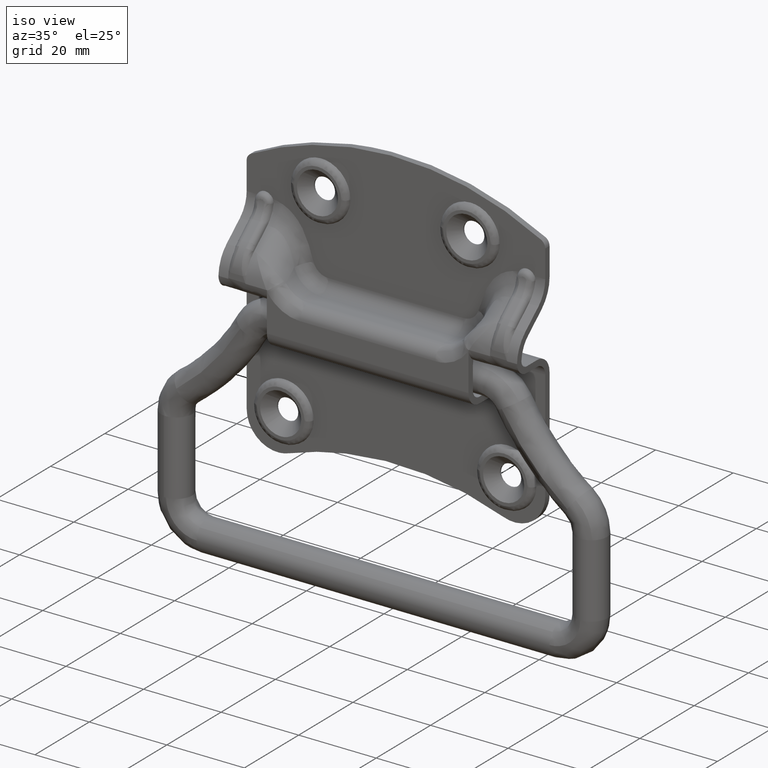
[diagram: clean part render]
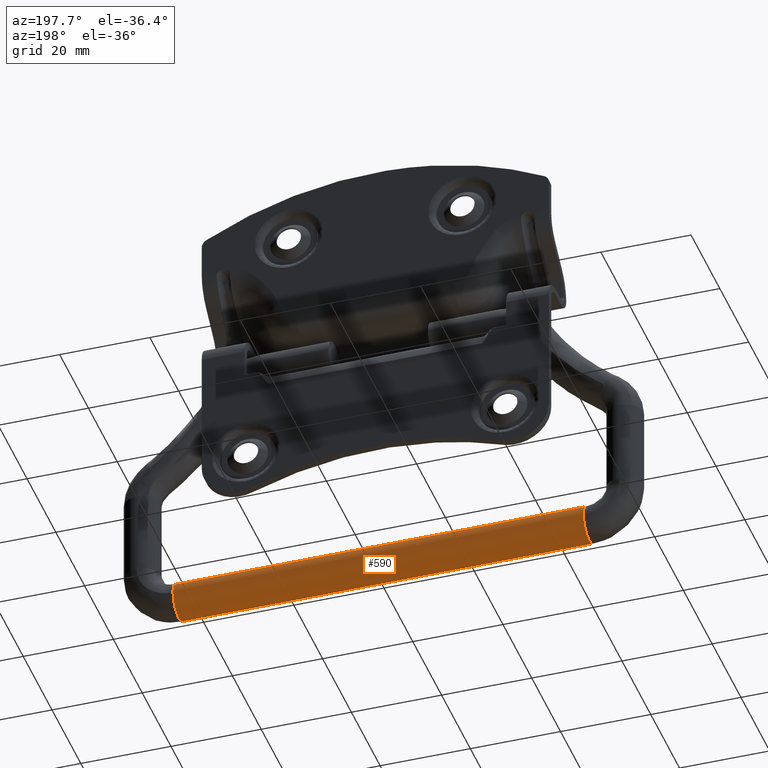
[diagram: tour spotlight — one face highlighted and labeled with its STEP entity id]
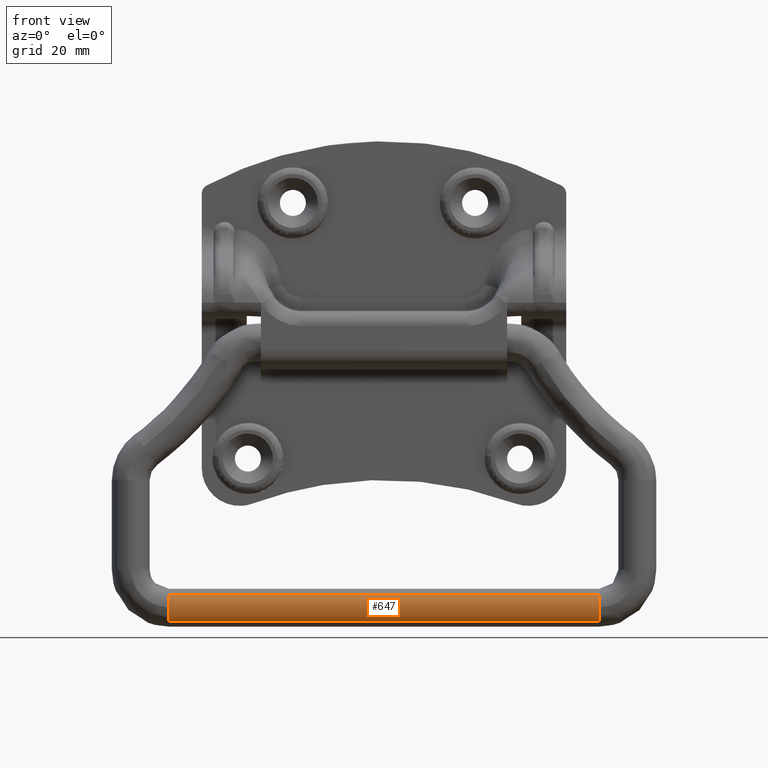
[diagram: tour spotlight — one face highlighted and labeled with its STEP entity id]
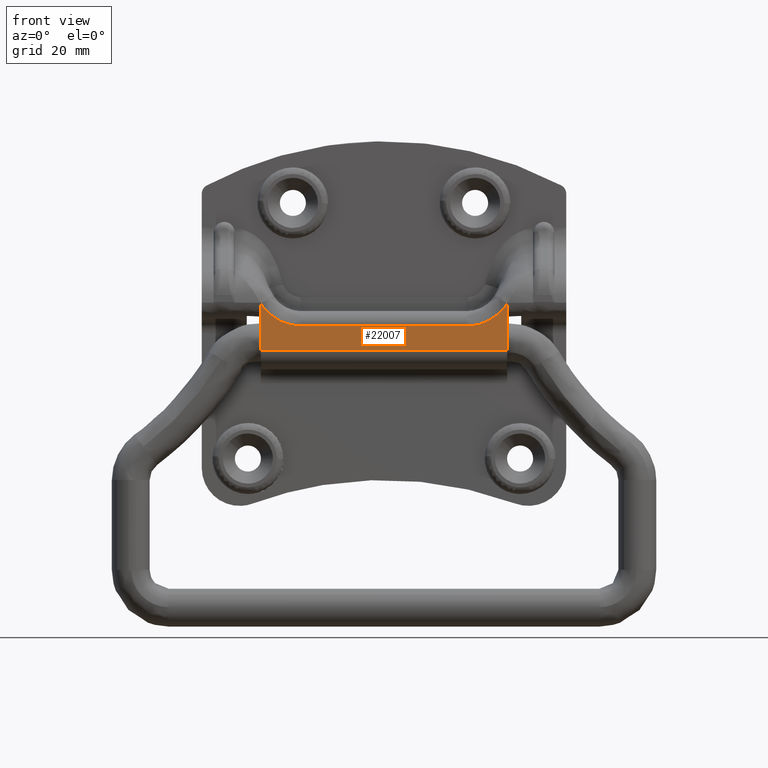
[diagram: tour spotlight — one face highlighted and labeled with its STEP entity id]
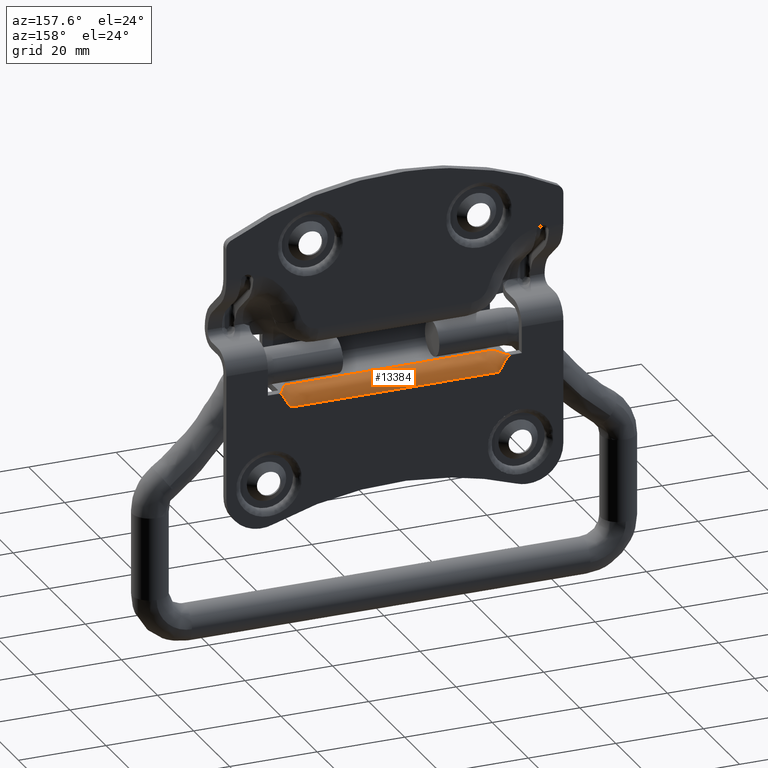
[diagram: tour spotlight — one face highlighted and labeled with its STEP entity id]
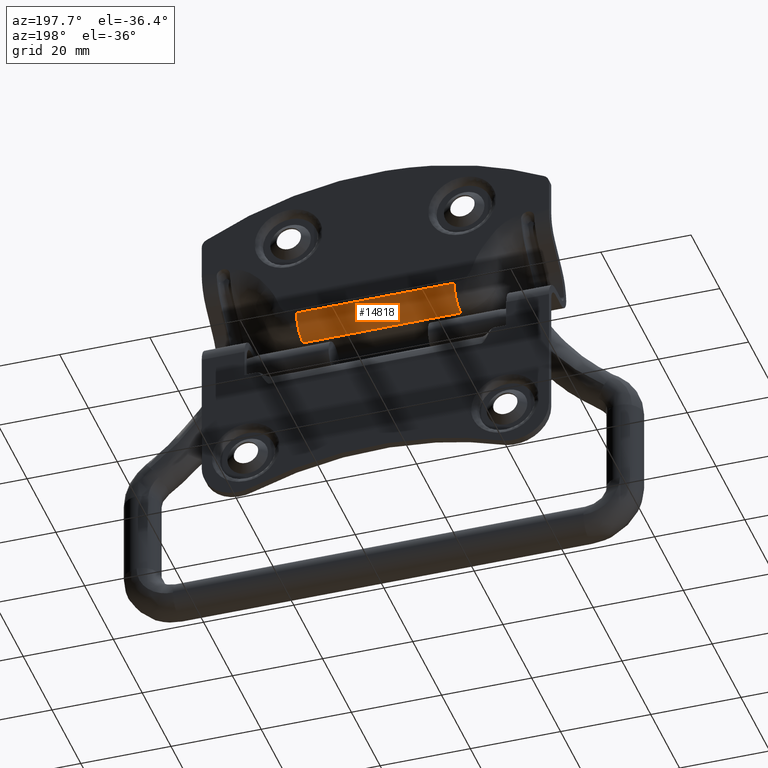
[diagram: tour spotlight — one face highlighted and labeled with its STEP entity id]
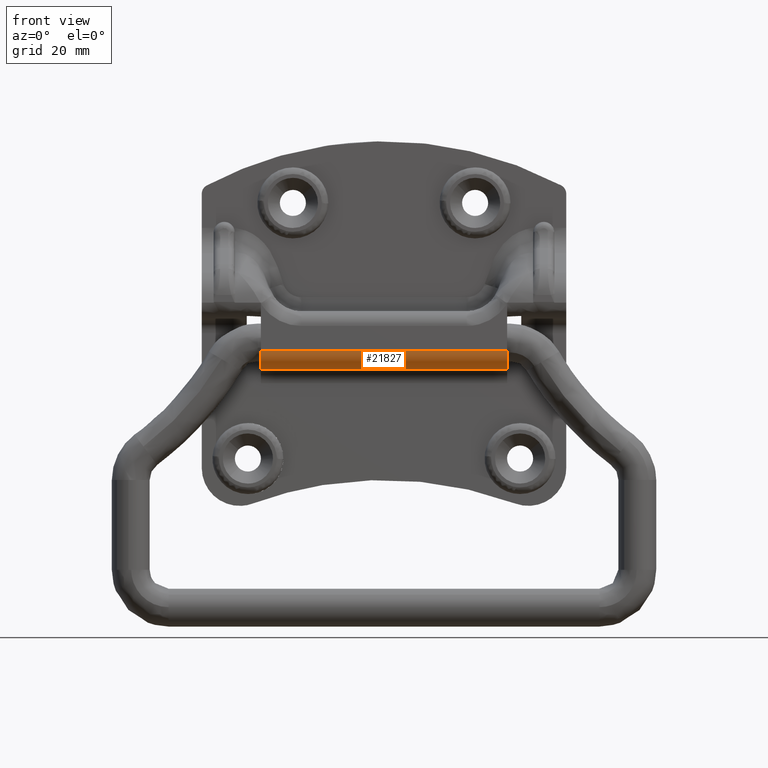
[diagram: tour spotlight — one face highlighted and labeled with its STEP entity id]
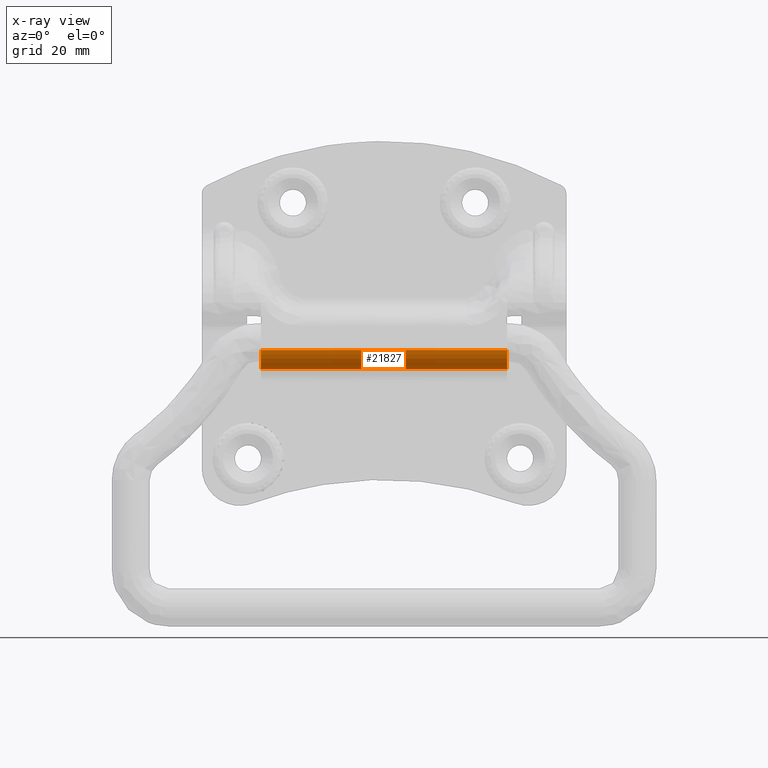
[diagram: x-ray of the same camera — body ghosted, this tour face saturated]
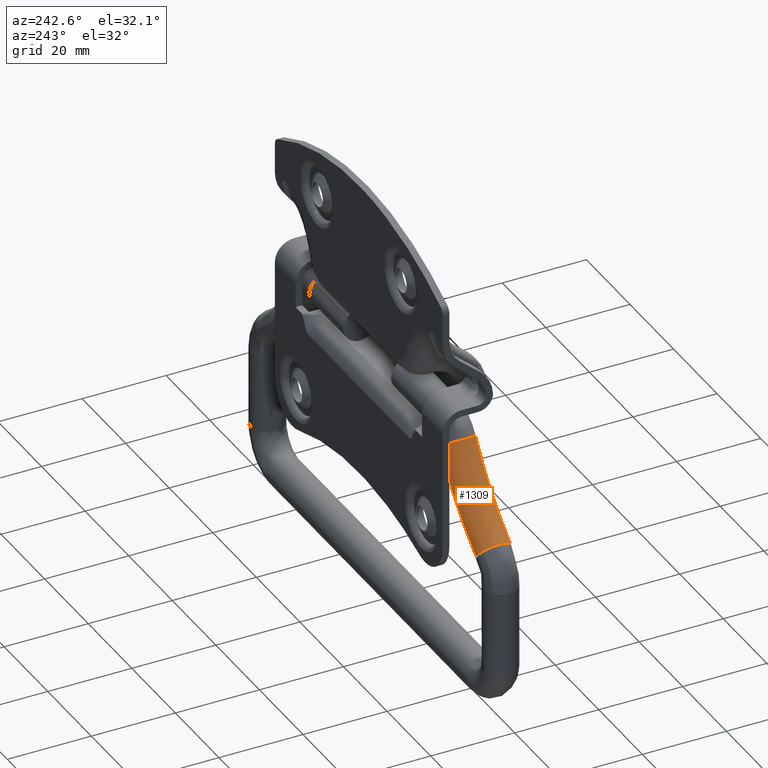
[diagram: tour spotlight — one face highlighted and labeled with its STEP entity id]
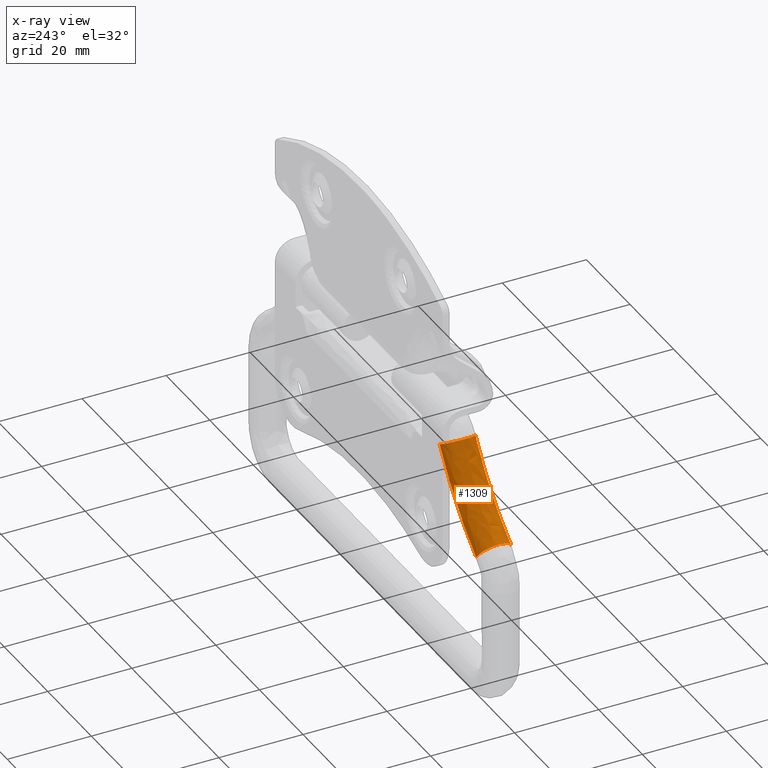
[diagram: x-ray of the same camera — body ghosted, this tour face saturated]
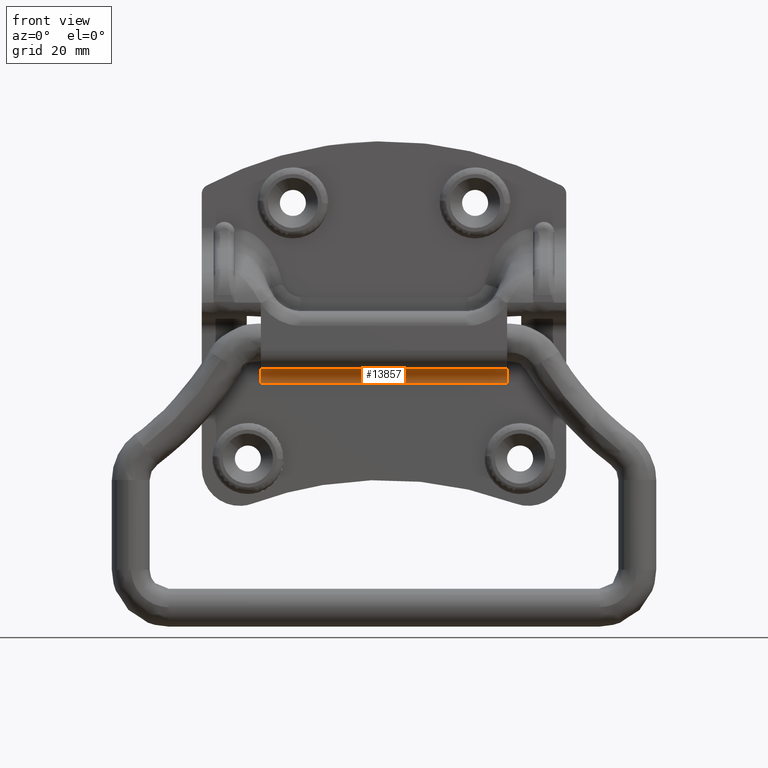
[diagram: tour spotlight — one face highlighted and labeled with its STEP entity id]
A machine part: a face-by-face anatomy tour. The part has 266 B-rep faces; the first image is the clean iso view, then the 8 largest visible faces are spotlighted one at a time (largest first), each with its STEP entity span.

Face 1 — auxiliary view, entity #590. In plain terms, the highlighted face is a freeform B-spline surface patch.
Definition (entity closure, byte-faithful):
#453=CARTESIAN_POINT('',(47.775210000207863,-2.901497484049149,-53.246611697224992));
#454=CARTESIAN_POINT('',(47.775210000207856,-0.148079181274134,-50.345114213175826));
#455=CARTESIAN_POINT('',(47.775210000207863,2.753418302775016,-53.098532515950851));
#456=CARTESIAN_POINT('',(47.775210000207856,5.654915786824166,-55.851950818725868));
#457=CARTESIAN_POINT('',(47.775210000207863,2.901497484049151,-58.753448302775020));
#458=CARTESIAN_POINT('',(47.775210000207856,0.148079181274135,-61.654945786824186));
#459=CARTESIAN_POINT('',(47.775210000207863,-2.753418302775014,-58.901527484049147));
#460=CARTESIAN_POINT('',(-47.832085251310382,-2.901497484049149,-53.246611697224992));
#461=CARTESIAN_POINT('',(-47.832085251310382,-0.148079181274134,-50.345114213175826));
#462=CARTESIAN_POINT('',(-47.832085251310382,2.753418302775016,-53.098532515950851));
#463=CARTESIAN_POINT('',(-47.832085251310382,5.654915786824166,-55.851950818725868));
#464=CARTESIAN_POINT('',(-47.832085251310382,2.901497484049151,-58.753448302775020));
#465=CARTESIAN_POINT('',(-47.832085251310382,0.148079181274135,-61.654945786824186));
#466=CARTESIAN_POINT('',(-47.832085251310382,-2.753418302775014,-58.901527484049147));
#474=(BOUNDED_SURFACE()B_SPLINE_SURFACE(2,1,((#453,#460),(#454,#461),(#455,#462),(#456,#463),(#457,#464),(#458,#465),(#459,#466)),.UNSPECIFIED.,.F.,.F.,.U.)B_SPLINE_SURFACE_WITH_KNOTS((3,2,2,3),(2,2),(0.0,6.627416997969532,13.254833995939061,19.882250993908599),(0.0,95.607295251518238),.UNSPECIFIED.)GEOMETRIC_REPRESENTATION_ITEM()RATIONAL_B_SPLINE_SURFACE(((1.0,1.0),(0.707106781186548,0.707106781186548),(1.0,1.0),(0.707106781186548,0.707106781186548),(1.0,1.0),(0.707106781186548,0.707106781186548),(1.0,1.0)))REPRESENTATION_ITEM('')SURFACE());
#475=CARTESIAN_POINT('',(-45.500199999994337,-2.901497353621698,-53.246611559789883));
#476=VERTEX_POINT('',#475);
#477=CARTESIAN_POINT('',(-45.500199999999197,0.0,-52.000030000000002));
#478=VERTEX_POINT('',#477);
#479=CARTESIAN_POINT('',(-45.500199999994337,-2.901497353621698,-53.246611559789883));
#480=CARTESIAN_POINT('',(-45.500199999995779,-2.552657467026106,-52.878231811651183));
#481=CARTESIAN_POINT('',(-45.500199999997378,-1.964386287139715,-52.458054138223289));
#482=CARTESIAN_POINT('',(-45.500199999998991,-0.946755736963771,-52.080859399608038));
#483=CARTESIAN_POINT('',(-45.500199999999190,-0.372001046086529,-51.999875654119784));
#484=CARTESIAN_POINT('',(-45.500199999999197,0.0,-52.000030000000002));
#485=B_SPLINE_CURVE_WITH_KNOTS('',3,(#479,#480,#481,#482,#483,#484),.UNSPECIFIED.,.F.,.U.,(4,1,1,4),(0.000000051280596,1.521756960872616,2.130437051319176,3.246399201293093),.UNSPECIFIED.);
#486=EDGE_CURVE('',#476,#478,#485,.T.);
#487=ORIENTED_EDGE('',*,*,#486,.F.);
#488=CARTESIAN_POINT('',(45.500200000055372,-2.901497355229981,-53.246611561486432));
#489=VERTEX_POINT('',#488);
#490=CARTESIAN_POINT('',(45.500200000055372,-2.901497355229981,-53.246611561486432));
#491=CARTESIAN_POINT('',(-45.500199999994337,-2.901497353621698,-53.246611559789883));
#492=QUASI_UNIFORM_CURVE('',1,(#490,#491),.UNSPECIFIED.,.F.,.U.);
#493=EDGE_CURVE('',#489,#476,#492,.T.);
#494=ORIENTED_EDGE('',*,*,#493,.F.);
#495=CARTESIAN_POINT('',(45.500200000000703,8.255010E-016,-52.000030000000002));
#496=VERTEX_POINT('',#495);
#497=CARTESIAN_POINT('',(45.500200000055372,-2.901497355229981,-53.246611561486432));
#498=CARTESIAN_POINT('',(45.500200000041403,-2.599056093993197,-52.927518966172087));
#499=CARTESIAN_POINT('',(45.500200000022332,-2.024367251312929,-52.494169015524562));
#500=CARTESIAN_POINT('',(45.500200000004682,-1.014400996400021,-52.090341937128223));
#501=CARTESIAN_POINT('',(45.500200000000667,-0.371991904013153,-51.999881516805928));
#502=CARTESIAN_POINT('',(45.500200000000703,8.255010E-016,-52.000030000000002));
#503=B_SPLINE_CURVE_WITH_KNOTS('',3,(#497,#498,#499,#500,#501,#502),.UNSPECIFIED.,.F.,.U.,(4,1,1,4),(0.000000051280754,1.318863952139025,2.130437052852726,3.246399203630138),.UNSPECIFIED.);
#504=EDGE_CURVE('',#489,#496,#503,.T.);
#505=ORIENTED_EDGE('',*,*,#504,.T.);
#506=CARTESIAN_POINT('',(45.500200000058172,3.998736757120124,-56.100550382293520));
#507=VERTEX_POINT('',#506);
#508=CARTESIAN_POINT('',(45.500200000000703,8.255010E-016,-52.000030000000002));
#509=CARTESIAN_POINT('',(45.500199999995807,0.432265729351608,-51.999781691791817));
#510=CARTESIAN_POINT('',(45.500199999991032,1.130300652824963,-52.114360338586032));
#511=CARTESIAN_POINT('',(45.500199999990919,2.135431646760589,-52.567921740088359));
#512=CARTESIAN_POINT('',(45.500199999997342,2.871395099245591,-53.154841158671132));
#513=CARTESIAN_POINT('',(45.500200000011887,3.537170425626259,-54.034005006860397));
#514=CARTESIAN_POINT('',(45.500200000031562,3.930628171731112,-55.001225666995417));
#515=CARTESIAN_POINT('',(45.500200000049752,4.007134957255723,-55.768192880162907));
#516=CARTESIAN_POINT('',(45.500200000058172,3.998736757120124,-56.100550382293520));
#517=B_SPLINE_CURVE_WITH_KNOTS('',3,(#508,#509,#510,#511,#512,#513,#514,#515,#516),.UNSPECIFIED.,.F.,.U.,(4,1,1,1,1,1,4),(0.000000116606028,1.296719771168355,2.094733138937757,3.291678943335561,4.089642441463694,5.386426887586781,6.383881631464872),.UNSPECIFIED.);
#518=EDGE_CURVE('',#496,#507,#517,.T.);
#519=ORIENTED_EDGE('',*,*,#518,.T.);
#520=CARTESIAN_POINT('',(45.500200000000703,8.255010E-016,-60.000030000000002));
#521=VERTEX_POINT('',#520);
#522=CARTESIAN_POINT('',(45.500200000058172,3.998736757120124,-56.100550382293520));
#523=CARTESIAN_POINT('',(45.500200000052047,3.988460168510945,-56.519070622730162));
#524=CARTESIAN_POINT('',(45.500200000042597,3.869983848042651,-57.160169337321882));
#525=CARTESIAN_POINT('',(45.500200000028990,3.458179606168735,-58.073459211652647));
#526=CARTESIAN_POINT('',(45.500200000018488,2.914298230311533,-58.802549026400769));
#527=CARTESIAN_POINT('',(45.500200000008839,2.129987097809118,-59.431838788753282));
#528=CARTESIAN_POINT('',(45.500200000002472,1.159134385462181,-59.882660591602047));
#529=CARTESIAN_POINT('',(45.500200000000802,0.418641070906803,-60.000258706407209));
#530=CARTESIAN_POINT('',(45.500200000000703,8.255010E-016,-60.000030000000002));
#531=B_SPLINE_CURVE_WITH_KNOTS('',3,(#522,#523,#524,#525,#526,#527,#528,#529,#530),.UNSPECIFIED.,.F.,.U.,(4,1,1,1,1,1,4),(0.000000150359211,1.255872438396544,1.932130804343061,2.994812782218800,3.960838537534740,4.926931215716708,6.182804565165723),.UNSPECIFIED.);
#532=EDGE_CURVE('',#507,#521,#531,.T.);
#533=ORIENTED_EDGE('',*,*,#532,.T.);
#534=CARTESIAN_POINT('',(45.500199999990507,-2.753418437719603,-58.901527355991497));
#535=VERTEX_POINT('',#534);
#536=CARTESIAN_POINT('',(45.500200000000703,8.255010E-016,-60.000030000000002));
#537=CARTESIAN_POINT('',(45.500199999982861,-0.537890119948858,-60.000700103418247));
#538=CARTESIAN_POINT('',(45.500199999964458,-1.549555689081211,-59.792475894663283));
#539=CARTESIAN_POINT('',(45.500199999977610,-2.409443891742051,-59.228477442816263));
#540=CARTESIAN_POINT('',(45.500199999990507,-2.753418437719603,-58.901527355991497));
#541=B_SPLINE_CURVE_WITH_KNOTS('',3,(#536,#537,#538,#539,#540),.UNSPECIFIED.,.F.,.U.,(4,1,4),(0.000000059124114,1.613363243608643,3.036944296391603),.UNSPECIFIED.);
#542=EDGE_CURVE('',#521,#535,#541,.T.);
#543=ORIENTED_EDGE('',*,*,#542,.T.);
#544=CARTESIAN_POINT('',(-45.500200000000113,-2.753418439405355,-58.901527354391789));
#545=VERTEX_POINT('',#544);
#546=CARTESIAN_POINT('',(45.500199999990507,-2.753418437719603,-58.901527355991497));
#547=CARTESIAN_POINT('',(-45.500200000000113,-2.753418439405355,-58.901527354391789));
#548=QUASI_UNIFORM_CURVE('',1,(#546,#547),.UNSPECIFIED.,.F.,.U.);
#549=EDGE_CURVE('',#535,#545,#548,.T.);
#550=ORIENTED_EDGE('',*,*,#549,.T.);
#551=CARTESIAN_POINT('',(-45.500199999999197,0.0,-60.000030000000002));
#552=VERTEX_POINT('',#551);
#553=CARTESIAN_POINT('',(-45.500199999999197,0.0,-60.000030000000002));
#554=CARTESIAN_POINT('',(-45.500200000000838,-0.537889830182075,-60.000712413121327));
#555=CARTESIAN_POINT('',(-45.500200000002337,-1.549554835718613,-59.792481294104853));
#556=CARTESIAN_POINT('',(-45.500200000001321,-2.409444232607455,-59.228473651086183));
#557=CARTESIAN_POINT('',(-45.500200000000113,-2.753418439405355,-58.901527354391789));
#558=B_SPLINE_CURVE_WITH_KNOTS('',3,(#553,#554,#555,#556,#557),.UNSPECIFIED.,.F.,.U.,(4,1,4),(0.000000059123462,1.613363244843306,3.036944298715720),.UNSPECIFIED.);
#559=EDGE_CURVE('',#552,#545,#558,.T.);
#560=ORIENTED_EDGE('',*,*,#559,.F.);
#561=CARTESIAN_POINT('',(-45.500200001273349,3.998736757022165,-56.100550386190321));
#562=VERTEX_POINT('',#561);
#563=CARTESIAN_POINT('',(-45.500200001273349,3.998736757022165,-56.100550386190321));
#564=CARTESIAN_POINT('',(-45.500200001136662,3.988459281550964,-56.519070787070092));
#565=CARTESIAN_POINT('',(-45.500200000906112,3.858162475692841,-57.224297259148393));
#566=CARTESIAN_POINT('',(-45.500200000629619,3.451407615413837,-58.071042099206529));
#567=CARTESIAN_POINT('',(-45.500200000392262,2.910383777449892,-58.796392892591157));
#568=CARTESIAN_POINT('',(-45.500200000194162,2.188867973175760,-59.404573515569567));
#569=CARTESIAN_POINT('',(-45.500200000036848,1.159143900491402,-59.882663611237817));
#570=CARTESIAN_POINT('',(-45.500199999999850,0.418632719086322,-60.000253901246410));
#571=CARTESIAN_POINT('',(-45.500199999999197,0.0,-60.000030000000002));
#572=B_SPLINE_CURVE_WITH_KNOTS('',3,(#563,#564,#565,#566,#567,#568,#569,#570,#571),.UNSPECIFIED.,.F.,.U.,(4,1,1,1,1,1,4),(0.000000150362339,1.255872437446884,2.125352024143014,2.801622199732796,3.960838534533254,4.926931211982964,6.182804560480287),.UNSPECIFIED.);
#573=EDGE_CURVE('',#562,#552,#572,.T.);
#574=ORIENTED_EDGE('',*,*,#573,.F.);
#575=CARTESIAN_POINT('',(-45.500199999999197,0.0,-52.000030000000002));
#576=CARTESIAN_POINT('',(-45.500199999891848,0.432255841743170,-51.999799501776089));
#577=CARTESIAN_POINT('',(-45.500199999761008,1.263331386058864,-52.136076675803722));
#578=CARTESIAN_POINT('',(-45.500199999795818,2.250660381439063,-52.642249512258537));
#579=CARTESIAN_POINT('',(-45.500199999964089,2.951991952007469,-53.261555106811102));
#580=CARTESIAN_POINT('',(-45.500200000177848,3.395776625671090,-53.847568629457783));
#581=CARTESIAN_POINT('',(-45.500200000468297,3.745581035790398,-54.530028089265727));
#582=CARTESIAN_POINT('',(-45.500200000822304,3.963080603154772,-55.268189998685934));
#583=CARTESIAN_POINT('',(-45.500200001124618,4.005452927894212,-55.834659837758927));
#584=CARTESIAN_POINT('',(-45.500200001273349,3.998736757022165,-56.100550386190321));
#585=B_SPLINE_CURVE_WITH_KNOTS('',3,(#575,#576,#577,#578,#579,#580,#581,#582,#583,#584),.UNSPECIFIED.,.F.,.U.,(4,1,1,1,1,1,1,4),(0.000000116606783,1.296719771960676,2.493740216605515,3.291678945345765,4.089642443961003,4.688162156534252,5.585931983743727,6.383881635363215),.UNSPECIFIED.);
#586=EDGE_CURVE('',#478,#562,#585,.T.);
#587=ORIENTED_EDGE('',*,*,#586,.F.);
#588=EDGE_LOOP('',(#487,#494,#505,#519,#533,#543,#550,#560,#574,#587));
#589=FACE_OUTER_BOUND('',#588,.T.);
#590=ADVANCED_FACE('',(#589),#474,.T.);

Face 2 — front view, entity #647. In plain terms, the highlighted face is a freeform B-spline surface patch.
Definition (entity closure, byte-faithful):
#475=CARTESIAN_POINT('',(-45.500199999994337,-2.901497353621698,-53.246611559789883));
#476=VERTEX_POINT('',#475);
#488=CARTESIAN_POINT('',(45.500200000055372,-2.901497355229981,-53.246611561486432));
#489=VERTEX_POINT('',#488);
#490=CARTESIAN_POINT('',(45.500200000055372,-2.901497355229981,-53.246611561486432));
#491=CARTESIAN_POINT('',(-45.500199999994337,-2.901497353621698,-53.246611559789883));
#492=QUASI_UNIFORM_CURVE('',1,(#490,#491),.UNSPECIFIED.,.F.,.U.);
#493=EDGE_CURVE('',#489,#476,#492,.T.);
#534=CARTESIAN_POINT('',(45.500199999990507,-2.753418437719603,-58.901527355991497));
#535=VERTEX_POINT('',#534);
#544=CARTESIAN_POINT('',(-45.500200000000113,-2.753418439405355,-58.901527354391789));
#545=VERTEX_POINT('',#544);
#546=CARTESIAN_POINT('',(45.500199999990507,-2.753418437719603,-58.901527355991497));
#547=CARTESIAN_POINT('',(-45.500200000000113,-2.753418439405355,-58.901527354391789));
#548=QUASI_UNIFORM_CURVE('',1,(#546,#547),.UNSPECIFIED.,.F.,.U.);
#549=EDGE_CURVE('',#535,#545,#548,.T.);
#591=CARTESIAN_POINT('',(47.775210000207863,-2.753418302775014,-58.901527484049147));
#592=CARTESIAN_POINT('',(47.775210000207856,-5.654915786824165,-56.148109181274130));
#593=CARTESIAN_POINT('',(47.775210000207863,-2.901497484049149,-53.246611697224992));
#594=CARTESIAN_POINT('',(-47.832085251310382,-2.753418302775014,-58.901527484049147));
#595=CARTESIAN_POINT('',(-47.832085251310382,-5.654915786824165,-56.148109181274130));
#596=CARTESIAN_POINT('',(-47.832085251310382,-2.901497484049149,-53.246611697224992));
#604=(BOUNDED_SURFACE()B_SPLINE_SURFACE(2,1,((#591,#594),(#592,#595),(#593,#596)),.UNSPECIFIED.,.F.,.F.,.U.)B_SPLINE_SURFACE_WITH_KNOTS((3,3),(2,2),(0.0,6.627416997969532),(0.0,95.607295251518238),.UNSPECIFIED.)GEOMETRIC_REPRESENTATION_ITEM()RATIONAL_B_SPLINE_SURFACE(((1.0,1.0),(0.707106781186548,0.707106781186548),(1.0,1.0)))REPRESENTATION_ITEM('')SURFACE());
#605=CARTESIAN_POINT('',(-45.500199999984012,-3.998736757132020,-55.899509618179742));
#606=VERTEX_POINT('',#605);
#607=CARTESIAN_POINT('',(-45.500199999984012,-3.998736757132020,-55.899509618179742));
#608=CARTESIAN_POINT('',(-45.500199999986130,-3.986185406539397,-55.379610343668730));
#609=CARTESIAN_POINT('',(-45.500199999989633,-3.767387146124701,-54.406499887034961));
#610=CARTESIAN_POINT('',(-45.500199999993157,-3.217576650415800,-53.579228410046980));
#611=CARTESIAN_POINT('',(-45.500199999994337,-2.901497353621698,-53.246611559789883));
#612=B_SPLINE_CURVE_WITH_KNOTS('',3,(#607,#608,#609,#610,#611),.UNSPECIFIED.,.F.,.U.,(4,1,4),(0.000000050042148,1.559953796602690,2.936406495244229),.UNSPECIFIED.);
#613=EDGE_CURVE('',#606,#476,#612,.T.);
#614=ORIENTED_EDGE('',*,*,#613,.F.);
#615=CARTESIAN_POINT('',(-45.500200000000113,-2.753418439405355,-58.901527354391789));
#616=CARTESIAN_POINT('',(-45.500199999998912,-3.133235478902902,-58.541911398417533));
#617=CARTESIAN_POINT('',(-45.500199999995793,-3.604262350100693,-57.874086508423439));
#618=CARTESIAN_POINT('',(-45.500199999989910,-3.951421064522891,-56.807381792853612));
#619=CARTESIAN_POINT('',(-45.500199999986052,-4.006690600124101,-56.213180724739111));
#620=CARTESIAN_POINT('',(-45.500199999984012,-3.998736757132020,-55.899509618179742));
#621=B_SPLINE_CURVE_WITH_KNOTS('',3,(#615,#616,#617,#618,#619,#620),.UNSPECIFIED.,.F.,.U.,(4,1,1,4),(0.000000033247771,1.568878182277715,2.405611991481065,3.346938499597786),.UNSPECIFIED.);
#622=EDGE_CURVE('',#545,#606,#621,.T.);
#623=ORIENTED_EDGE('',*,*,#622,.F.);
#624=ORIENTED_EDGE('',*,*,#549,.F.);
#625=CARTESIAN_POINT('',(45.500200000171731,-3.998736757131707,-55.899509618167329));
#626=VERTEX_POINT('',#625);
#627=CARTESIAN_POINT('',(45.500199999990507,-2.753418437719603,-58.901527355991497));
#628=CARTESIAN_POINT('',(45.500199999998962,-2.981074747982411,-58.685592848692963));
#629=CARTESIAN_POINT('',(45.500200000020243,-3.362622252325688,-58.226742054509486));
#630=CARTESIAN_POINT('',(45.500200000077449,-3.872480445470462,-57.227527515935513));
#631=CARTESIAN_POINT('',(45.500200000132487,-4.012468579686717,-56.422382968729721));
#632=CARTESIAN_POINT('',(45.500200000171731,-3.998736757131707,-55.899509618167329));
#633=B_SPLINE_CURVE_WITH_KNOTS('',3,(#627,#628,#629,#630,#631,#632),.UNSPECIFIED.,.F.,.U.,(4,1,1,4),(0.000000033247096,0.941326542021332,1.778060351808916,3.346938501934366),.UNSPECIFIED.);
#634=EDGE_CURVE('',#535,#626,#633,.T.);
#635=ORIENTED_EDGE('',*,*,#634,.T.);
#636=CARTESIAN_POINT('',(45.500200000171731,-3.998736757131707,-55.899509618167329));
#637=CARTESIAN_POINT('',(45.500200000151587,-3.987539785474928,-55.440795352219382));
#638=CARTESIAN_POINT('',(45.500200000108983,-3.792275032422308,-54.466882124779332));
#639=CARTESIAN_POINT('',(45.500200000071793,-3.259922850628318,-53.623444921458727));
#640=CARTESIAN_POINT('',(45.500200000055372,-2.901497355229981,-53.246611561486432));
#641=B_SPLINE_CURVE_WITH_KNOTS('',3,(#636,#637,#638,#639,#640),.UNSPECIFIED.,.F.,.U.,(4,1,4),(0.000000050042718,1.376452747581991,2.936406492893250),.UNSPECIFIED.);
#642=EDGE_CURVE('',#626,#489,#641,.T.);
#643=ORIENTED_EDGE('',*,*,#642,.T.);
#644=ORIENTED_EDGE('',*,*,#493,.T.);
#645=EDGE_LOOP('',(#614,#623,#624,#635,#643,#644));
#646=FACE_OUTER_BOUND('',#645,.T.);
#647=ADVANCED_FACE('',(#646),#604,.T.);

Face 3 — front view, entity #22007. In plain terms, the highlighted face is a freeform B-spline surface patch.
Definition (entity closure, byte-faithful):
#11143=CARTESIAN_POINT('',(25.784688332217350,-6.0,7.867236392747722));
#11144=VERTEX_POINT('',#11143);
#11157=CARTESIAN_POINT('',(26.000019999999999,-6.0,8.167119445763241));
#11158=VERTEX_POINT('',#11157);
#11159=CARTESIAN_POINT('',(26.000019999999999,-6.0,8.167119445763241));
#11160=CARTESIAN_POINT('',(25.926324104537802,-6.000000000000004,8.068557809308722));
#11161=CARTESIAN_POINT('',(25.854526690757371,-6.000000000000004,7.968568658005919));
#11162=CARTESIAN_POINT('',(25.784688332217350,-6.0,7.867236392747722));
#11163=B_SPLINE_CURVE_WITH_KNOTS('',3,(#11159,#11160,#11161,#11162),.UNSPECIFIED.,.F.,.U.,(4,4),(3.333955E-011,0.369209355338714),.UNSPECIFIED.);
#11164=EDGE_CURVE('',#11158,#11144,#11163,.T.);
#11355=CARTESIAN_POINT('',(17.469295052986400,-6.0,3.499970000000100));
#11356=VERTEX_POINT('',#11355);
#11368=CARTESIAN_POINT('',(25.784688332217350,-6.0,7.867236392747722));
#11369=CARTESIAN_POINT('',(25.380459129041220,-6.000000000000010,7.280731877523937));
#11370=CARTESIAN_POINT('',(24.413891966242389,-5.999999999999989,6.154960484676977));
#11371=CARTESIAN_POINT('',(22.486902636217820,-6.000000000000016,4.712997591416956));
#11372=CARTESIAN_POINT('',(20.114956771464360,-5.999999999999979,3.730005190802113));
#11373=CARTESIAN_POINT('',(18.334257930048430,-6.000000000000012,3.499758030627000));
#11374=CARTESIAN_POINT('',(17.469295052986400,-6.0,3.499970000000100));
#11375=B_SPLINE_CURVE_WITH_KNOTS('',3,(#11368,#11369,#11370,#11371,#11372,#11373,#11374),.UNSPECIFIED.,.F.,.U.,(4,1,1,1,4),(0.000000040982524,2.136948682738825,4.426573113479231,7.174055783142872,9.768930790637011),.UNSPECIFIED.);
#11376=EDGE_CURVE('',#11144,#11356,#11375,.T.);
#11408=CARTESIAN_POINT('',(-17.469295052986400,-6.0,3.499970000000100));
#11409=VERTEX_POINT('',#11408);
#11422=CARTESIAN_POINT('',(17.469295052986400,-6.0,3.499970000000100));
#11423=CARTESIAN_POINT('',(-17.469295052986400,-6.0,3.499970000000100));
#11424=QUASI_UNIFORM_CURVE('',1,(#11422,#11423),.UNSPECIFIED.,.F.,.U.);
#11425=EDGE_CURVE('',#11356,#11409,#11424,.T.);
#11455=CARTESIAN_POINT('',(-25.784688332217350,-6.0,7.867236392747722));
#11456=VERTEX_POINT('',#11455);
#11469=CARTESIAN_POINT('',(-17.469295052986400,-6.0,3.499970000000100));
#11470=CARTESIAN_POINT('',(-18.181608058378391,-6.000000000000001,3.499872888873191));
#11471=CARTESIAN_POINT('',(-19.657096511613911,-6.000000000000014,3.656634446620545));
#11472=CARTESIAN_POINT('',(-21.743779023714481,-5.999999999999987,4.359537161391813));
#11473=CARTESIAN_POINT('',(-23.932744515297411,-5.999999999999998,5.683657615907703));
#11474=CARTESIAN_POINT('',(-25.178651056119669,-6.000000000000015,6.987180129442290));
#11475=CARTESIAN_POINT('',(-25.784688332217350,-6.0,7.867236392747722));
#11476=B_SPLINE_CURVE_WITH_KNOTS('',3,(#11469,#11470,#11471,#11472,#11473,#11474,#11475),.UNSPECIFIED.,.F.,.U.,(4,1,1,1,4),(0.000000040980998,2.136948682738019,4.426573113478980,6.563499673341074,9.768930790636997),.UNSPECIFIED.);
#11477=EDGE_CURVE('',#11409,#11456,#11476,.T.);
#11541=CARTESIAN_POINT('',(-26.000019999999999,-6.0,8.167119445763250));
#11542=VERTEX_POINT('',#11541);
#11550=CARTESIAN_POINT('',(-25.784688332217350,-6.0,7.867236392747722));
#11551=CARTESIAN_POINT('',(-25.854533782745499,-5.999999999999997,7.968563717850691));
#11552=CARTESIAN_POINT('',(-25.926331049858550,-6.000000000000008,8.068552664741256));
#11553=CARTESIAN_POINT('',(-26.000019999999999,-6.0,8.167119445763250));
#11554=B_SPLINE_CURVE_WITH_KNOTS('',3,(#11550,#11551,#11552,#11553),.UNSPECIFIED.,.F.,.U.,(4,4),(3.282885E-011,0.369209178476165),.UNSPECIFIED.);
#11555=EDGE_CURVE('',#11456,#11542,#11554,.T.);
#21669=CARTESIAN_POINT('',(26.000019999999999,-6.0,-1.599999999999900));
#21670=VERTEX_POINT('',#21669);
#21671=CARTESIAN_POINT('',(26.000019999999999,-6.0,8.167119445763241));
#21672=CARTESIAN_POINT('',(26.000019999999999,-6.0,-1.599999999999900));
#21673=QUASI_UNIFORM_CURVE('',1,(#21671,#21672),.UNSPECIFIED.,.F.,.U.);
#21674=EDGE_CURVE('',#11158,#21670,#21673,.T.);
#21725=CARTESIAN_POINT('',(-26.000019999999999,-6.0,-1.599999999999900));
#21726=VERTEX_POINT('',#21725);
#21727=CARTESIAN_POINT('',(-26.000019999999999,-6.0,8.167119445763250));
#21728=CARTESIAN_POINT('',(-26.000019999999999,-6.0,-1.599999999999900));
#21729=QUASI_UNIFORM_CURVE('',1,(#21727,#21728),.UNSPECIFIED.,.F.,.U.);
#21730=EDGE_CURVE('',#11542,#21726,#21729,.T.);
#21817=CARTESIAN_POINT('',(26.000019999999999,-6.0,-1.599999999999900));
#21818=CARTESIAN_POINT('',(-26.000019999999999,-6.0,-1.599999999999900));
#21819=QUASI_UNIFORM_CURVE('',1,(#21817,#21818),.UNSPECIFIED.,.F.,.U.);
#21820=EDGE_CURVE('',#21670,#21726,#21819,.T.);
#21992=CARTESIAN_POINT('',(-28.597420735154820,-6.0,-2.087867654176915));
#21993=CARTESIAN_POINT('',(-28.597420735154820,-6.0,8.654986575991147));
#21994=CARTESIAN_POINT('',(28.597419340405072,-6.0,-2.087867654176915));
#21995=CARTESIAN_POINT('',(28.597419340405072,-6.0,8.654986575991147));
#21996=B_SPLINE_SURFACE_WITH_KNOTS('',1,1,((#21992,#21994),(#21993,#21995)),.UNSPECIFIED.,.F.,.F.,.U.,(2,2),(2,2),(0.0,10.742854230168060),(0.0,57.194840075559881),.UNSPECIFIED.);
#21997=ORIENTED_EDGE('',*,*,#21674,.F.);
#21998=ORIENTED_EDGE('',*,*,#11164,.T.);
#21999=ORIENTED_EDGE('',*,*,#11376,.T.);
#22000=ORIENTED_EDGE('',*,*,#11425,.T.);
#22001=ORIENTED_EDGE('',*,*,#11477,.T.);
#22002=ORIENTED_EDGE('',*,*,#11555,.T.);
#22003=ORIENTED_EDGE('',*,*,#21730,.T.);
#22004=ORIENTED_EDGE('',*,*,#21820,.F.);
#22005=EDGE_LOOP('',(#21997,#21998,#21999,#22000,#22001,#22002,#22003,#22004));
#22006=FACE_OUTER_BOUND('',#22005,.T.);
#22007=ADVANCED_FACE('',(#22006),#21996,.F.);

Face 4 — auxiliary view, entity #13384. In plain terms, the highlighted face is a freeform B-spline surface patch.
Definition (entity closure, byte-faithful):
#13264=CARTESIAN_POINT('',(28.999980000000001,5.900000000000000,-3.999999999999901));
#13265=CARTESIAN_POINT('',(28.999979999999990,6.000000000000003,-3.999999999999900));
#13266=CARTESIAN_POINT('',(28.999980000000001,6.0,-4.099999999999900));
#13267=CARTESIAN_POINT('',(28.079345714285729,5.900000000000000,-3.999999999999901));
#13268=CARTESIAN_POINT('',(28.079345714285736,6.000000000000003,-3.999999999999900));
#13269=CARTESIAN_POINT('',(28.079345714285729,6.0,-4.099999999999900));
#13270=CARTESIAN_POINT('',(27.158711428571468,5.900000000000000,-3.999999999999901));
#13271=CARTESIAN_POINT('',(27.158711428571472,6.000000000000003,-3.999999999999900));
#13272=CARTESIAN_POINT('',(27.158711428571468,6.0,-4.099999999999900));
#13273=CARTESIAN_POINT('',(26.238077142857200,5.900000000000000,-3.999999999999901));
#13274=CARTESIAN_POINT('',(26.238077142857211,6.000000000000003,-3.999999999999900));
#13275=CARTESIAN_POINT('',(26.238077142857200,6.0,-4.099999999999900));
#13276=CARTESIAN_POINT('',(25.317442857142900,5.900000000000000,-3.999999999999901));
#13277=CARTESIAN_POINT('',(25.317442857142932,6.000000000000003,-3.999999999999900));
#13278=CARTESIAN_POINT('',(25.317442857142900,6.0,-4.099999999999900));
#13279=CARTESIAN_POINT('',(24.396808571428650,2.400000000000000,-3.999999999999901));
#13280=CARTESIAN_POINT('',(24.396808571428650,6.000000000000003,-3.999999999999900));
#13281=CARTESIAN_POINT('',(24.396808571428650,6.0,-7.599999999999900));
#13282=CARTESIAN_POINT('',(23.476174285714350,2.400000000000000,-3.999999999999901));
#13283=CARTESIAN_POINT('',(23.476174285714304,5.999999999999996,-3.999999999999900));
#13284=CARTESIAN_POINT('',(23.476174285714350,6.0,-7.599999999999900));
#13285=CARTESIAN_POINT('',(7.825391428571450,2.400000000000000,-3.999999999999901));
#13286=CARTESIAN_POINT('',(7.825391428571448,5.999999999999996,-3.999999999999900));
#13287=CARTESIAN_POINT('',(7.825391428571450,6.0,-7.599999999999900));
#13288=CARTESIAN_POINT('',(-7.825391428571450,2.400000000000000,-3.999999999999901));
#13289=CARTESIAN_POINT('',(-7.825391428571448,5.999999999999996,-3.999999999999900));
#13290=CARTESIAN_POINT('',(-7.825391428571450,6.0,-7.599999999999900));
#13291=CARTESIAN_POINT('',(-23.476174285714350,2.400000000000000,-3.999999999999901));
#13292=CARTESIAN_POINT('',(-23.476174285714304,5.999999999999996,-3.999999999999900));
#13293=CARTESIAN_POINT('',(-23.476174285714350,6.0,-7.599999999999900));
#13294=CARTESIAN_POINT('',(-24.396808571428650,2.400000000000000,-3.999999999999901));
#13295=CARTESIAN_POINT('',(-24.396808571428583,5.999999999999996,-3.999999999999900));
#13296=CARTESIAN_POINT('',(-24.396808571428650,6.0,-7.599999999999900));
#13297=CARTESIAN_POINT('',(-25.317442857142900,5.900000000000000,-3.999999999999901));
#13298=CARTESIAN_POINT('',(-25.317442857142932,5.999999999999996,-3.999999999999900));
#13299=CARTESIAN_POINT('',(-25.317442857142900,6.0,-4.099999999999900));
#13300=CARTESIAN_POINT('',(-26.238077142857200,5.900000000000000,-3.999999999999901));
#13301=CARTESIAN_POINT('',(-26.238077142857211,5.999999999999996,-3.999999999999900));
#13302=CARTESIAN_POINT('',(-26.238077142857200,6.0,-4.099999999999900));
#13303=CARTESIAN_POINT('',(-27.158711428571479,5.900000000000000,-3.999999999999901));
#13304=CARTESIAN_POINT('',(-27.158711428571486,5.999999999999996,-3.999999999999900));
#13305=CARTESIAN_POINT('',(-27.158711428571479,6.0,-4.099999999999900));
#13306=CARTESIAN_POINT('',(-28.079345714285751,5.900000000000000,-3.999999999999901));
#13307=CARTESIAN_POINT('',(-28.079345714285754,5.999999999999996,-3.999999999999900));
#13308=CARTESIAN_POINT('',(-28.079345714285751,6.0,-4.099999999999900));
#13309=CARTESIAN_POINT('',(-28.999980000000029,5.900000000000000,-3.999999999999901));
#13310=CARTESIAN_POINT('',(-28.999980000000029,5.999999999999996,-3.999999999999900));
#13311=CARTESIAN_POINT('',(-28.999980000000029,6.0,-4.099999999999900));
#13319=(BOUNDED_SURFACE()B_SPLINE_SURFACE(2,3,((#13264,#13267,#13270,#13273,#13276,#13279,#13282,#13285,#13288,#13291,#13294,#13297,#13300,#13303,#13306,#13309),(#13265,#13268,#13271,#13274,#13277,#13280,#13283,#13286,#13289,#13292,#13295,#13298,#13301,#13304,#13307,#13310),(#13266,#13269,#13272,#13275,#13278,#13281,#13284,#13287,#13290,#13293,#13296,#13299,#13302,#13305,#13308,#13311)),.UNSPECIFIED.,.F.,.F.,.U.)B_SPLINE_SURFACE_WITH_KNOTS((3,3),(4,3,3,3,3,4),(0.0,5.964675298172568),(0.0,5.422719351955736,10.845438703911570,103.031667687161100,108.454387039116600,113.877106391072400),.UNSPECIFIED.)GEOMETRIC_REPRESENTATION_ITEM()RATIONAL_B_SPLINE_SURFACE(((1.0,1.0,1.0,1.0,1.0,1.0,1.0,1.0,1.0,1.0,1.0,1.0,1.0,1.0,1.0,1.0),(0.707106781186548,0.707106781186548,0.707106781186548,0.707106781186548,0.707106781186548,0.707106781186548,0.707106781186548,0.707106781186548,0.707106781186548,0.707106781186548,0.707106781186548,0.707106781186548,0.707106781186548,0.707106781186548,0.707106781186548,0.707106781186548),(1.0,1.0,1.0,1.0,1.0,1.0,1.0,1.0,1.0,1.0,1.0,1.0,1.0,1.0,1.0,1.0)))REPRESENTATION_ITEM('')SURFACE());
#13320=CARTESIAN_POINT('',(28.999980000000001,6.0,-4.099999999999900));
#13321=VERTEX_POINT('',#13320);
#13322=CARTESIAN_POINT('',(28.999980000000001,5.900000000000000,-4.0));
#13323=VERTEX_POINT('',#13322);
#13324=CARTESIAN_POINT('',(28.999980000000001,6.0,-4.099999999999900));
#13325=CARTESIAN_POINT('',(28.999980000000050,6.000121683046158,-4.077068531058537));
#13326=CARTESIAN_POINT('',(28.999979999999930,5.981178538162941,-4.024880339896994));
#13327=CARTESIAN_POINT('',(28.999980000000050,5.929609017560271,-3.999626828457775));
#13328=CARTESIAN_POINT('',(28.999980000000001,5.900000000000000,-4.0));
#13329=B_SPLINE_CURVE_WITH_KNOTS('',3,(#13324,#13325,#13326,#13327,#13328),.UNSPECIFIED.,.F.,.U.,(4,1,4),(0.000000429670615,0.068756536055482,0.157142457223713),.UNSPECIFIED.);
#13330=EDGE_CURVE('',#13321,#13323,#13329,.T.);
#13331=ORIENTED_EDGE('',*,*,#13330,.F.);
#13332=CARTESIAN_POINT('',(-28.999980000000001,6.0,-4.099999999999900));
#13333=VERTEX_POINT('',#13332);
#13334=CARTESIAN_POINT('',(-28.999979999999979,6.0,-4.099999999999899));
#13335=CARTESIAN_POINT('',(-28.079345714285719,6.0,-4.099999999999899));
#13336=CARTESIAN_POINT('',(-27.158711428571461,6.0,-4.099999999999900));
#13337=CARTESIAN_POINT('',(-26.238077142857200,6.0,-4.099999999999900));
#13338=CARTESIAN_POINT('',(-25.317442857142900,6.0,-4.099999999999900));
#13339=CARTESIAN_POINT('',(-24.396808571428650,6.0,-7.599999999999900));
#13340=CARTESIAN_POINT('',(-23.476174285714350,6.0,-7.599999999999900));
#13341=CARTESIAN_POINT('',(-7.825391428571450,6.0,-7.599999999999900));
#13342=CARTESIAN_POINT('',(7.825391428571450,6.0,-7.599999999999900));
#13343=CARTESIAN_POINT('',(23.476174285714350,6.0,-7.599999999999900));
#13344=CARTESIAN_POINT('',(24.396808571428650,6.0,-7.599999999999900));
#13345=CARTESIAN_POINT('',(25.317442857142900,6.0,-4.099999999999900));
#13346=CARTESIAN_POINT('',(26.238077142857200,6.0,-4.099999999999900));
#13347=CARTESIAN_POINT('',(27.158711428571468,6.0,-4.099999999999900));
#13348=CARTESIAN_POINT('',(28.079345714285729,6.0,-4.099999999999900));
#13349=CARTESIAN_POINT('',(28.999979999999990,6.0,-4.099999999999900));
#13350=B_SPLINE_CURVE_WITH_KNOTS('',3,(#13334,#13335,#13336,#13337,#13338,#13339,#13340,#13341,#13342,#13343,#13344,#13345,#13346,#13347,#13348,#13349),.UNSPECIFIED.,.F.,.U.,(4,3,3,3,3,4),(0.400000000000000,0.409523809523809,0.419047619047618,0.580952380952380,0.590476190476190,0.599999999999999),.UNSPECIFIED.);
#13351=EDGE_CURVE('',#13333,#13321,#13350,.T.);
#13352=ORIENTED_EDGE('',*,*,#13351,.F.);
#13353=CARTESIAN_POINT('',(-28.999980000000001,5.900000000000000,-4.0));
#13354=VERTEX_POINT('',#13353);
#13355=CARTESIAN_POINT('',(-28.999980000000001,5.900000000000000,-4.0));
#13356=CARTESIAN_POINT('',(-28.999980000000019,5.929605704815043,-3.999633794994968));
#13357=CARTESIAN_POINT('',(-28.999980000000040,5.981182974614931,-4.024872922733527));
#13358=CARTESIAN_POINT('',(-28.999980000000011,6.000120651782920,-4.077070369788928));
#13359=CARTESIAN_POINT('',(-28.999980000000001,6.0,-4.099999999999900));
#13360=B_SPLINE_CURVE_WITH_KNOTS('',3,(#13355,#13356,#13357,#13358,#13359),.UNSPECIFIED.,.F.,.U.,(4,1,4),(0.000000429670642,0.088386350838840,0.157142457223689),.UNSPECIFIED.);
#13361=EDGE_CURVE('',#13354,#13333,#13360,.T.);
#13362=ORIENTED_EDGE('',*,*,#13361,.F.);
#13363=CARTESIAN_POINT('',(28.999980000000001,5.900000000000000,-4.0));
#13364=CARTESIAN_POINT('',(28.079345714285729,5.900000000000000,-3.999999999999901));
#13365=CARTESIAN_POINT('',(27.158711428571468,5.900000000000000,-3.999999999999901));
#13366=CARTESIAN_POINT('',(26.238077142857200,5.900000000000000,-3.999999999999901));
#13367=CARTESIAN_POINT('',(25.317442857142900,5.900000000000000,-3.999999999999901));
#13368=CARTESIAN_POINT('',(24.396808571428650,2.400000000000000,-3.999999999999901));
#13369=CARTESIAN_POINT('',(23.476174285714350,2.400000000000000,-3.999999999999901));
#13370=CARTESIAN_POINT('',(7.825391428571450,2.400000000000000,-3.999999999999901));
#13371=CARTESIAN_POINT('',(-7.825391428571450,2.400000000000000,-3.999999999999901));
#13372=CARTESIAN_POINT('',(-23.476174285714350,2.400000000000000,-3.999999999999901));
#13373=CARTESIAN_POINT('',(-24.396808571428650,2.400000000000000,-3.999999999999901));
#13374=CARTESIAN_POINT('',(-25.317442857142900,5.900000000000000,-3.999999999999901));
#13375=CARTESIAN_POINT('',(-26.238077142857200,5.900000000000000,-3.999999999999901));
#13376=CARTESIAN_POINT('',(-27.158711428571461,5.900000000000000,-3.999999999999901));
#13377=CARTESIAN_POINT('',(-28.079345714285719,5.900000000000000,-3.999999999999901));
#13378=CARTESIAN_POINT('',(-28.999979999999979,5.900000000000000,-3.999999999999901));
#13379=B_SPLINE_CURVE_WITH_KNOTS('',3,(#13363,#13364,#13365,#13366,#13367,#13368,#13369,#13370,#13371,#13372,#13373,#13374,#13375,#13376,#13377,#13378),.UNSPECIFIED.,.F.,.U.,(4,3,3,3,3,4),(0.400000000000000,0.409523809523810,0.419047619047619,0.580952380952381,0.590476190476190,0.599999999999999),.UNSPECIFIED.);
#13380=EDGE_CURVE('',#13323,#13354,#13379,.T.);
#13381=ORIENTED_EDGE('',*,*,#13380,.F.);
#13382=EDGE_LOOP('',(#13331,#13352,#13362,#13381));
#13383=FACE_OUTER_BOUND('',#13382,.T.);
#13384=ADVANCED_FACE('',(#13383),#13319,.T.);

Face 5 — auxiliary view, entity #14818. In plain terms, the highlighted face is a freeform B-spline surface patch.
Definition (entity closure, byte-faithful):
#14731=CARTESIAN_POINT('',(17.469295052986400,1.399999999999956,4.999970000000100));
#14732=VERTEX_POINT('',#14731);
#14733=CARTESIAN_POINT('',(17.469295052986400,6.0,9.599969999999999));
#14734=VERTEX_POINT('',#14733);
#14735=CARTESIAN_POINT('',(17.469295052986400,1.399999999999956,4.999970000000100));
#14736=CARTESIAN_POINT('',(17.469295052986411,1.776343414344209,4.999872587804259));
#14737=CARTESIAN_POINT('',(17.469295052986400,2.453694578280745,5.083587778090974));
#14738=CARTESIAN_POINT('',(17.469295052986411,3.450678860469524,5.440236324001814));
#14739=CARTESIAN_POINT('',(17.469295052986400,4.283561732162215,5.967686811592573));
#14740=CARTESIAN_POINT('',(17.469295052986400,5.059067965294791,6.743135716571931));
#14741=CARTESIAN_POINT('',(17.469295052986411,5.517279271606794,7.486722613731626));
#14742=CARTESIAN_POINT('',(17.469295052986361,5.896965890121658,8.471099160200755));
#14743=CARTESIAN_POINT('',(17.469295052986428,6.000289080848490,9.110684159598405));
#14744=CARTESIAN_POINT('',(17.469295052986400,6.0,9.599969999999999));
#14745=B_SPLINE_CURVE_WITH_KNOTS('',3,(#14735,#14736,#14737,#14738,#14739,#14740,#14741,#14742,#14743,#14744),.UNSPECIFIED.,.F.,.U.,(4,1,1,1,1,1,1,4),(0.000000089770408,1.129024293694187,2.032274277486351,3.161326930023069,4.064524630080094,5.306479311524679,5.758096694280161,7.225844423938927),.UNSPECIFIED.);
#14746=EDGE_CURVE('',#14732,#14734,#14745,.T.);
#14774=CARTESIAN_POINT('',(-18.342759805635719,5.999824846095187,9.640112063292515));
#14775=CARTESIAN_POINT('',(18.364596424451950,5.999824846095187,9.640112063292515));
#14776=CARTESIAN_POINT('',(-18.342759805635719,6.042871938725911,4.707403826745940));
#14777=CARTESIAN_POINT('',(18.364596424451950,6.042871938725911,4.707403826745940));
#14778=CARTESIAN_POINT('',(-18.342759805635719,1.119176718139657,5.008549927259411));
#14779=CARTESIAN_POINT('',(18.364596424451950,1.119176718139657,5.008549927259411));
#14787=(BOUNDED_SURFACE()B_SPLINE_SURFACE(1,2,((#14774,#14776,#14778),(#14775,#14777,#14779)),.UNSPECIFIED.,.F.,.F.,.U.)B_SPLINE_SURFACE_WITH_KNOTS((2,2),(3,3),(0.0,36.707356230087669),(0.0,8.000547699281173),.UNSPECIFIED.)GEOMETRIC_REPRESENTATION_ITEM()RATIONAL_B_SPLINE_SURFACE(((1.0,0.681998360062499,1.0),(1.0,0.681998360062499,1.0)))REPRESENTATION_ITEM('')SURFACE());
#14788=CARTESIAN_POINT('',(-17.469295052986400,1.399999999999956,4.999970000000100));
#14789=VERTEX_POINT('',#14788);
#14790=CARTESIAN_POINT('',(-17.469295052986400,6.0,9.599969999999999));
#14791=VERTEX_POINT('',#14790);
#14792=CARTESIAN_POINT('',(-17.469295052986400,1.399999999999956,4.999970000000100));
#14793=CARTESIAN_POINT('',(-17.469295052986411,1.851625985843121,4.999758934622345));
#14794=CARTESIAN_POINT('',(-17.469295052986389,2.604178656911659,5.111749221811274));
#14795=CARTESIAN_POINT('',(-17.469295052986421,3.512528984588786,5.488052874230811));
#14796=CARTESIAN_POINT('',(-17.469295052986389,4.213883068054793,5.932231921888970));
#14797=CARTESIAN_POINT('',(-17.469295052986428,4.970655120804152,6.617715707453617));
#14798=CARTESIAN_POINT('',(-17.469295052986400,5.594142309432286,7.576148309374848));
#14799=CARTESIAN_POINT('',(-17.469295052986411,5.936964523641805,8.659152889546709));
#14800=CARTESIAN_POINT('',(-17.469295052986389,6.000033859118742,9.298902501298299));
#14801=CARTESIAN_POINT('',(-17.469295052986400,6.0,9.599969999999999));
#14802=B_SPLINE_CURVE_WITH_KNOTS('',3,(#14792,#14793,#14794,#14795,#14796,#14797,#14798,#14799,#14800,#14801),.UNSPECIFIED.,.F.,.U.,(4,1,1,1,1,1,1,4),(0.000000089771092,1.354836821195809,2.258086942871244,2.935520339984037,3.838720354883915,5.306479311524807,6.322623810137887,7.225844423938855),.UNSPECIFIED.);
#14803=EDGE_CURVE('',#14789,#14791,#14802,.T.);
#14804=ORIENTED_EDGE('',*,*,#14803,.T.);
#14805=CARTESIAN_POINT('',(17.469295052986400,6.0,9.599969999999999));
#14806=CARTESIAN_POINT('',(-17.469295052986400,6.0,9.599969999999999));
#14807=QUASI_UNIFORM_CURVE('',1,(#14805,#14806),.UNSPECIFIED.,.F.,.U.);
#14808=EDGE_CURVE('',#14734,#14791,#14807,.T.);
#14809=ORIENTED_EDGE('',*,*,#14808,.F.);
#14810=ORIENTED_EDGE('',*,*,#14746,.F.);
#14811=CARTESIAN_POINT('',(-17.469295052986400,1.399999999999956,4.999970000000100));
#14812=CARTESIAN_POINT('',(17.469295052986400,1.399999999999956,4.999970000000100));
#14813=QUASI_UNIFORM_CURVE('',1,(#14811,#14812),.UNSPECIFIED.,.F.,.U.);
#14814=EDGE_CURVE('',#14789,#14732,#14813,.T.);
#14815=ORIENTED_EDGE('',*,*,#14814,.F.);
#14816=EDGE_LOOP('',(#14804,#14809,#14810,#14815));
#14817=FACE_OUTER_BOUND('',#14816,.T.);
#14818=ADVANCED_FACE('',(#14817),#14787,.T.);

Face 6 — front view, entity #21827. An x-ray twin of the same camera follows (body ghosted, this face saturated) — the face is partly hidden behind the body. In plain terms, the highlighted face is a freeform B-spline surface patch.
Definition (entity closure, byte-faithful):
#21621=CARTESIAN_POINT('',(-26.000019999999999,-2.0,-5.599999999999900));
#21622=VERTEX_POINT('',#21621);
#21629=CARTESIAN_POINT('',(26.000019999999999,-2.0,-5.599999999999900));
#21630=VERTEX_POINT('',#21629);
#21636=CARTESIAN_POINT('',(26.000019999999999,-2.0,-5.599999999999900));
#21637=CARTESIAN_POINT('',(-26.000019999999999,-2.0,-5.599999999999900));
#21638=QUASI_UNIFORM_CURVE('',1,(#21636,#21637),.UNSPECIFIED.,.F.,.U.);
#21639=EDGE_CURVE('',#21630,#21622,#21638,.T.);
#21669=CARTESIAN_POINT('',(26.000019999999999,-6.0,-1.599999999999900));
#21670=VERTEX_POINT('',#21669);
#21676=CARTESIAN_POINT('',(26.000019999999999,-6.0,-1.599999999999900));
#21677=CARTESIAN_POINT('',(26.000020000000021,-6.000323442391443,-2.058193394008705));
#21678=CARTESIAN_POINT('',(26.000019999999989,-5.852202589185280,-2.908832590450544));
#21679=CARTESIAN_POINT('',(26.000020000000010,-5.321984976837493,-3.900776649668964));
#21680=CARTESIAN_POINT('',(26.000020000000049,-4.747702248555236,-4.534155050611004));
#21681=CARTESIAN_POINT('',(26.000019999999932,-4.152747586964444,-4.998486552688552));
#21682=CARTESIAN_POINT('',(26.000020000000021,-3.276023651550807,-5.453530841330093));
#21683=CARTESIAN_POINT('',(26.000019999999999,-2.490942473811529,-5.600437569333606));
#21684=CARTESIAN_POINT('',(26.000019999999999,-2.0,-5.599999999999900));
#21685=B_SPLINE_CURVE_WITH_KNOTS('',3,(#21676,#21677,#21678,#21679,#21680,#21681,#21682,#21683,#21684),.UNSPECIFIED.,.F.,.U.,(4,1,1,1,1,1,4),(0.000000108831338,1.374478340886670,2.552635862203233,3.338007588733287,3.927055540615936,4.810685416077259,6.283342977340448),.UNSPECIFIED.);
#21686=EDGE_CURVE('',#21670,#21630,#21685,.T.);
#21725=CARTESIAN_POINT('',(-26.000019999999999,-6.0,-1.599999999999900));
#21726=VERTEX_POINT('',#21725);
#21763=CARTESIAN_POINT('',(-26.000019999999999,-6.0,-1.599999999999900));
#21764=CARTESIAN_POINT('',(-26.000020000000021,-6.000323442391443,-2.058193394008705));
#21765=CARTESIAN_POINT('',(-26.000019999999989,-5.852202589185280,-2.908832590450544));
#21766=CARTESIAN_POINT('',(-26.000020000000010,-5.321984976837493,-3.900776649668964));
#21767=CARTESIAN_POINT('',(-26.000020000000049,-4.747702248555236,-4.534155050611004));
#21768=CARTESIAN_POINT('',(-26.000019999999932,-4.152747586964444,-4.998486552688552));
#21769=CARTESIAN_POINT('',(-26.000020000000021,-3.276023651550807,-5.453530841330093));
#21770=CARTESIAN_POINT('',(-26.000019999999999,-2.490942473811529,-5.600437569333606));
#21771=CARTESIAN_POINT('',(-26.000019999999999,-2.0,-5.599999999999900));
#21772=B_SPLINE_CURVE_WITH_KNOTS('',3,(#21763,#21764,#21765,#21766,#21767,#21768,#21769,#21770,#21771),.UNSPECIFIED.,.F.,.U.,(4,1,1,1,1,1,4),(0.000000108831338,1.374478340886670,2.552635862203233,3.338007588733287,3.927055540615936,4.810685416077259,6.283342977340448),.UNSPECIFIED.);
#21773=EDGE_CURVE('',#21726,#21622,#21772,.T.);
#21803=CARTESIAN_POINT('',(27.300021000000012,-5.998629299902228,-1.495292206768402));
#21804=CARTESIAN_POINT('',(-27.332521024999998,-5.998629299902228,-1.495292206768402));
#21805=CARTESIAN_POINT('',(27.300021000000005,-6.112897804783965,-5.859030354376372));
#21806=CARTESIAN_POINT('',(-27.332521024999998,-6.112897804783965,-5.859030354376372));
#21807=CARTESIAN_POINT('',(27.300021000000012,-1.755805841860578,-5.592539193687368));
#21808=CARTESIAN_POINT('',(-27.332521024999998,-1.755805841860578,-5.592539193687368));
#21816=(BOUNDED_SURFACE()B_SPLINE_SURFACE(1,2,((#21803,#21805,#21807),(#21804,#21806,#21808)),.UNSPECIFIED.,.F.,.F.,.U.)B_SPLINE_SURFACE_WITH_KNOTS((2,2),(3,3),(0.0,54.632542025000014),(0.0,7.040168494269333),.UNSPECIFIED.)GEOMETRIC_REPRESENTATION_ITEM()RATIONAL_B_SPLINE_SURFACE(((1.0,0.675590207615660,1.0),(1.0,0.675590207615660,1.0)))REPRESENTATION_ITEM('')SURFACE());
#21817=CARTESIAN_POINT('',(26.000019999999999,-6.0,-1.599999999999900));
#21818=CARTESIAN_POINT('',(-26.000019999999999,-6.0,-1.599999999999900));
#21819=QUASI_UNIFORM_CURVE('',1,(#21817,#21818),.UNSPECIFIED.,.F.,.U.);
#21820=EDGE_CURVE('',#21670,#21726,#21819,.T.);
#21821=ORIENTED_EDGE('',*,*,#21820,.T.);
#21822=ORIENTED_EDGE('',*,*,#21773,.T.);
#21823=ORIENTED_EDGE('',*,*,#21639,.F.);
#21824=ORIENTED_EDGE('',*,*,#21686,.F.);
#21825=EDGE_LOOP('',(#21821,#21822,#21823,#21824));
#21826=FACE_OUTER_BOUND('',#21825,.T.);
#21827=ADVANCED_FACE('',(#21826),#21816,.T.);

Face 7 — auxiliary view, entity #1309. An x-ray twin of the same camera follows (body ghosted, this face saturated) — the face is partly hidden behind the body. In plain terms, the highlighted face is a freeform B-spline surface patch.
Definition (entity closure, byte-faithful):
#1091=CARTESIAN_POINT('',(-34.302151838647731,-3.906832948267044,-3.500867497437144));
#1092=VERTEX_POINT('',#1091);
#1132=CARTESIAN_POINT('',(-33.216997741059750,3.979804067870131,-4.140687472691729));
#1133=VERTEX_POINT('',#1132);
#1141=CARTESIAN_POINT('',(-37.008472132230096,2.110858E-015,-1.905188333333972));
#1142=VERTEX_POINT('',#1141);
#1143=CARTESIAN_POINT('',(-33.216997741059750,3.979804067870131,-4.140687472691729));
#1144=CARTESIAN_POINT('',(-33.425883658605663,4.004279968815763,-4.017525810308800));
#1145=CARTESIAN_POINT('',(-33.907793531745057,4.009414030855771,-3.733385922891266));
#1146=CARTESIAN_POINT('',(-34.558997407813223,3.856334838253515,-3.349428244609351));
#1147=CARTESIAN_POINT('',(-35.197527842103327,3.546692051689472,-2.972942980819903));
#1148=CARTESIAN_POINT('',(-35.803619294055778,3.087397311297097,-2.615584133198948));
#1149=CARTESIAN_POINT('',(-36.406309232737492,2.347386368763332,-2.260230858926777));
#1150=CARTESIAN_POINT('',(-36.884963083486753,1.288147806348283,-1.978010761676385));
#1151=CARTESIAN_POINT('',(-37.008733530555283,0.452692826319039,-1.905034209720687));
#1152=CARTESIAN_POINT('',(-37.008472132230096,2.110858E-015,-1.905188333333972));
#1153=B_SPLINE_CURVE_WITH_KNOTS('',3,(#1143,#1144,#1145,#1146,#1147,#1148,#1149,#1150,#1151,#1152),.UNSPECIFIED.,.F.,.U.,(4,1,1,1,1,1,1,4),(0.000000111994811,0.731207183980094,1.671377119447867,2.298165050882687,3.133849043280008,4.178425371785508,5.327509390757566,6.685499083285301),.UNSPECIFIED.);
#1154=EDGE_CURVE('',#1133,#1142,#1153,.T.);
#1156=CARTESIAN_POINT('',(-37.008472132230096,2.110858E-015,-1.905188333333972));
#1157=CARTESIAN_POINT('',(-37.008520225223663,-0.310413762382172,-1.905159977123510));
#1158=CARTESIAN_POINT('',(-36.951589769217378,-0.874778022904296,-1.938726862265602));
#1159=CARTESIAN_POINT('',(-36.691996741411423,-1.760396243060890,-2.091786049900650));
#1160=CARTESIAN_POINT('',(-36.222208637966403,-2.628922250729953,-2.368778795359667));
#1161=CARTESIAN_POINT('',(-35.412135087886611,-3.460602952749832,-2.846407954155076));
#1162=CARTESIAN_POINT('',(-34.705906279201884,-3.804273122404760,-3.262808997955535));
#1163=CARTESIAN_POINT('',(-34.302151838647731,-3.906832948267044,-3.500867497437144));
#1164=B_SPLINE_CURVE_WITH_KNOTS('',3,(#1156,#1157,#1158,#1159,#1160,#1161,#1162,#1163),.UNSPECIFIED.,.F.,.U.,(4,1,1,1,1,4),(0.000000168859590,0.931248905041167,1.693215961173781,2.793766558248655,3.979042718921881,5.418273187434466),.UNSPECIFIED.);
#1165=EDGE_CURVE('',#1142,#1092,#1164,.T.);
#1220=CARTESIAN_POINT('',(-51.777574810755475,-3.918968903944765,-22.725154410543833));
#1221=CARTESIAN_POINT('',(-40.474093111251271,-3.918968903944767,-14.590145328219858));
#1222=CARTESIAN_POINT('',(-33.636912823240024,-3.918968903944766,-2.457543092518292));
#1223=CARTESIAN_POINT('',(-51.793669490171702,-3.912915862487115,-22.702791077891145));
#1224=CARTESIAN_POINT('',(-40.495115918734733,-3.912915862487116,-14.571328722819139));
#1225=CARTESIAN_POINT('',(-33.660916526431031,-3.912915862487116,-2.444016097805332));
#1226=CARTESIAN_POINT('',(-53.842065579143167,-3.142535407705667,-19.856573271529392));
#1227=CARTESIAN_POINT('',(-43.170722901308856,-3.142535407705667,-12.176508676159507));
#1228=CARTESIAN_POINT('',(-36.715906965551461,-3.142535407705667,-0.722413427196614));
#1229=CARTESIAN_POINT('',(-53.633244496793381,0.401446859404855,-20.146727254017282));
#1230=CARTESIAN_POINT('',(-42.897961617955545,0.401446859404855,-12.420645499535070));
#1231=CARTESIAN_POINT('',(-36.404469927812478,0.401446859404855,-0.897919978389700));
#1232=CARTESIAN_POINT('',(-53.398743607577074,4.381250927330054,-20.472562970111742));
#1233=CARTESIAN_POINT('',(-42.591657471025606,4.381250927330053,-12.694805088824612));
#1234=CARTESIAN_POINT('',(-36.054733869255180,4.381250927330054,-1.095009476513878));
#1235=CARTESIAN_POINT('',(-51.058221341161918,3.977082186768058,-23.724686027133327));
#1236=CARTESIAN_POINT('',(-39.534476414780308,3.977082186768060,-15.431155579553517));
#1237=CARTESIAN_POINT('',(-32.564064664727923,3.977082186768059,-3.062133611428005));
#1238=CARTESIAN_POINT('',(-51.042547341707255,3.974375551283295,-23.746464830844648));
#1239=CARTESIAN_POINT('',(-39.514003097821963,3.974375551283295,-15.449480359759569));
#1240=CARTESIAN_POINT('',(-32.540688366201202,3.974375551283295,-3.075307039880413));
#1248=(BOUNDED_SURFACE()B_SPLINE_SURFACE(2,2,((#1220,#1223,#1226,#1229,#1232,#1235,#1238),(#1221,#1224,#1227,#1230,#1233,#1236,#1239),(#1222,#1225,#1228,#1231,#1234,#1237,#1240)),.UNSPECIFIED.,.F.,.F.,.U.)B_SPLINE_SURFACE_WITH_KNOTS((3,3),(3,1,2,1,3),(0.0,28.070804669680449),(0.0,0.063719857321550,6.160943211035638,12.788360209005170,12.852086962782490),.UNSPECIFIED.)GEOMETRIC_REPRESENTATION_ITEM()RATIONAL_B_SPLINE_SURFACE(((0.916016592581551,0.913763286238386,0.695895685762613,0.952579395481598,0.673575350163620,0.955262193637245,0.957944991792892),(0.894434119554928,0.892233903869472,0.679499530945170,0.930135458029813,0.657705089794936,0.932755046174529,0.935374634319245),(0.915771720960447,0.913519016976215,0.695709657358683,0.952324749809576,0.673395288482133,0.955006830793570,0.957688911777564)))REPRESENTATION_ITEM('')SURFACE());
#1249=ORIENTED_EDGE('',*,*,#1165,.F.);
#1250=ORIENTED_EDGE('',*,*,#1154,.F.);
#1251=CARTESIAN_POINT('',(-50.058614239848957,3.979804067364710,-22.956848700156691));
#1252=VERTEX_POINT('',#1251);
#1253=CARTESIAN_POINT('',(-50.058614239848957,3.979804067364710,-22.956848700156691));
#1254=CARTESIAN_POINT('',(-47.834352859759413,3.979804067485734,-21.289190894024170));
#1255=CARTESIAN_POINT('',(-44.307731550820982,3.979804067652656,-18.269140252179021));
#1256=CARTESIAN_POINT('',(-38.497801900992627,3.979804067847844,-12.091763759560280));
#1257=CARTESIAN_POINT('',(-35.166503141121559,3.979804067886611,-7.447953121565941));
#1258=CARTESIAN_POINT('',(-33.216997741059750,3.979804067870131,-4.140687472691729));
#1259=B_SPLINE_CURVE_WITH_KNOTS('',3,(#1253,#1254,#1255,#1256,#1257,#1258),.UNSPECIFIED.,.F.,.U.,(4,1,1,4),(3.133010E-009,8.340007306351584,13.899998913458511,25.417163063901590),.UNSPECIFIED.);
#1260=EDGE_CURVE('',#1252,#1133,#1259,.T.);
#1261=ORIENTED_EDGE('',*,*,#1260,.F.);
#1262=CARTESIAN_POINT('',(-51.782074102369421,3.145153728473582,-20.658336975300401));
#1263=VERTEX_POINT('',#1262);
#1264=CARTESIAN_POINT('',(-50.058614239848957,3.979804067364710,-22.956848700156691));
#1265=CARTESIAN_POINT('',(-50.306453310956357,4.021689720702608,-22.626315321793790));
#1266=CARTESIAN_POINT('',(-50.713064600950439,3.983889243307837,-22.084033579208121));
#1267=CARTESIAN_POINT('',(-51.300287525809722,3.673853472949658,-21.300877088451500));
#1268=CARTESIAN_POINT('',(-51.616384001648562,3.362324113511370,-20.879311450813159));
#1269=CARTESIAN_POINT('',(-51.782074102369421,3.145153728473582,-20.658336975300401));
#1270=B_SPLINE_CURVE_WITH_KNOTS('',3,(#1264,#1265,#1266,#1267,#1268,#1269),.UNSPECIFIED.,.F.,.U.,(4,1,1,4),(0.000000038733177,1.245682570274268,2.012227735582635,3.066267729837189),.UNSPECIFIED.);
#1271=EDGE_CURVE('',#1252,#1263,#1270,.T.);
#1272=ORIENTED_EDGE('',*,*,#1271,.T.);
#1273=CARTESIAN_POINT('',(-52.699066666667207,-3.429418E-016,-19.435379477405061));
#1274=VERTEX_POINT('',#1273);
#1275=CARTESIAN_POINT('',(-51.782074102369421,3.145153728473582,-20.658336975300401));
#1276=CARTESIAN_POINT('',(-51.977791131385572,2.889099277111646,-20.397316747416401));
#1277=CARTESIAN_POINT('',(-52.234841371053029,2.427896576447069,-20.054498789914032));
#1278=CARTESIAN_POINT('',(-52.497857665057623,1.654960388343264,-19.703724136612841));
#1279=CARTESIAN_POINT('',(-52.656714093961313,0.904762079690912,-19.491863464694521));
#1280=CARTESIAN_POINT('',(-52.699112812141472,0.320450408239447,-19.435317934970840));
#1281=CARTESIAN_POINT('',(-52.699066666667207,-3.429418E-016,-19.435379477405061));
#1282=B_SPLINE_CURVE_WITH_KNOTS('',3,(#1275,#1276,#1277,#1278,#1279,#1280,#1281),.UNSPECIFIED.,.F.,.U.,(4,1,1,1,4),(0.000000081996017,1.244093922168257,1.866084509642214,2.657809070538939,3.619144872639128),.UNSPECIFIED.);
#1283=EDGE_CURVE('',#1263,#1274,#1282,.T.);
#1284=ORIENTED_EDGE('',*,*,#1283,.T.);
#1285=CARTESIAN_POINT('',(-50.814335492932187,-3.906832948333716,-21.948972509474320));
#1286=VERTEX_POINT('',#1285);
#1287=CARTESIAN_POINT('',(-52.699066666667207,-3.429418E-016,-19.435379477405061));
#1288=CARTESIAN_POINT('',(-52.699079273866367,-0.253977363516404,-19.435362663671441));
#1289=CARTESIAN_POINT('',(-52.666730420614520,-0.818361287275398,-19.478505077434200));
#1290=CARTESIAN_POINT('',(-52.507142924594277,-1.657994281365039,-19.691340745243320));
#1291=CARTESIAN_POINT('',(-52.191853545581523,-2.535466494760055,-20.111829989128729));
#1292=CARTESIAN_POINT('',(-51.649439361815183,-3.406327919453129,-20.835226795958381));
#1293=CARTESIAN_POINT('',(-51.128631075312711,-3.792368136829252,-21.529808653699270));
#1294=CARTESIAN_POINT('',(-50.814335492932187,-3.906832948333716,-21.948972509474320));
#1295=B_SPLINE_CURVE_WITH_KNOTS('',3,(#1287,#1288,#1289,#1290,#1291,#1292,#1293,#1294),.UNSPECIFIED.,.F.,.U.,(4,1,1,1,1,4),(0.000000168861226,0.761939147968845,1.693215961287639,2.624502009900577,3.809712433974969,5.418273187795185),.UNSPECIFIED.);
#1296=EDGE_CURVE('',#1274,#1286,#1295,.T.);
#1297=ORIENTED_EDGE('',*,*,#1296,.T.);
#1298=CARTESIAN_POINT('',(-50.814335492932187,-3.906832948333716,-21.948972509474320));
#1299=CARTESIAN_POINT('',(-47.802622575226422,-3.906832948388507,-19.691272017892182));
#1300=CARTESIAN_POINT('',(-43.638104643913387,-3.906832948426364,-15.942403303052620));
#1301=CARTESIAN_POINT('',(-38.247523865076033,-3.906832948385978,-9.612237772995666));
#1302=CARTESIAN_POINT('',(-35.686413148239268,-3.906832948321104,-5.848813972169870));
#1303=CARTESIAN_POINT('',(-34.302151838647731,-3.906832948267044,-3.500867497437144));
#1304=B_SPLINE_CURVE_WITH_KNOTS('',3,(#1298,#1299,#1300,#1301,#1302,#1303),.UNSPECIFIED.,.F.,.U.,(4,1,1,4),(3.071001E-009,11.291881017430679,16.743115613742560,24.919987011657419),.UNSPECIFIED.);
#1305=EDGE_CURVE('',#1286,#1092,#1304,.T.);
#1306=ORIENTED_EDGE('',*,*,#1305,.T.);
#1307=EDGE_LOOP('',(#1249,#1250,#1261,#1272,#1284,#1297,#1306));
#1308=FACE_OUTER_BOUND('',#1307,.T.);
#1309=ADVANCED_FACE('',(#1308),#1248,.T.);

Face 8 — front view, entity #13857. In plain terms, the highlighted face is a freeform B-spline surface patch.
Definition (entity closure, byte-faithful):
#13800=CARTESIAN_POINT('',(-27.300021000000001,1.321469155076380,-5.601028025073229));
#13801=CARTESIAN_POINT('',(27.332521024999998,1.321469155076380,-5.601028025073229));
#13802=CARTESIAN_POINT('',(-27.300021000000005,4.624955022703598,-5.514523203238625));
#13803=CARTESIAN_POINT('',(27.332521025000002,4.624955022703598,-5.514523203238625));
#13804=CARTESIAN_POINT('',(-27.300020999999997,4.392573398667604,-8.810960786846689));
#13805=CARTESIAN_POINT('',(27.332521024999998,4.392573398667604,-8.810960786846689));
#13813=(BOUNDED_SURFACE()B_SPLINE_SURFACE(1,2,((#13800,#13802,#13804),(#13801,#13803,#13805)),.UNSPECIFIED.,.F.,.F.,.U.)B_SPLINE_SURFACE_WITH_KNOTS((2,2),(3,3),(0.0,54.632542024999999),(0.0,5.313427703918920),.UNSPECIFIED.)GEOMETRIC_REPRESENTATION_ITEM()RATIONAL_B_SPLINE_SURFACE(((1.0,0.670944181649548,0.996392730709535),(1.0,0.670944181649548,0.996392730709535)))REPRESENTATION_ITEM('')SURFACE());
#13814=CARTESIAN_POINT('',(26.000019999999999,1.400000000000000,-5.599999999999900));
#13815=VERTEX_POINT('',#13814);
#13816=CARTESIAN_POINT('',(26.000019999999999,4.400000000000000,-8.599999999999900));
#13817=VERTEX_POINT('',#13816);
#13818=CARTESIAN_POINT('',(26.000019999999999,1.400000000000000,-5.599999999999900));
#13819=CARTESIAN_POINT('',(26.000019999999960,1.817350339586785,-5.599437215354778));
#13820=CARTESIAN_POINT('',(26.000020000000038,2.479550106659744,-5.740596393834728));
#13821=CARTESIAN_POINT('',(26.000019999999981,3.243096744304699,-6.198403021905699));
#13822=CARTESIAN_POINT('',(26.000019999999971,3.773328718826650,-6.715746362617811));
#13823=CARTESIAN_POINT('',(26.000020000000099,4.254204220460043,-7.495890575605689));
#13824=CARTESIAN_POINT('',(26.000020000000021,4.400550737433934,-8.182660149730710));
#13825=CARTESIAN_POINT('',(26.000019999999999,4.400000000000000,-8.599999999999900));
#13826=B_SPLINE_CURVE_WITH_KNOTS('',3,(#13818,#13819,#13820,#13821,#13822,#13823,#13824,#13825),.UNSPECIFIED.,.F.,.U.,(4,1,1,1,1,4),(0.000000258695802,1.251764366500264,1.988115073234052,2.650743320523220,3.460745463141683,4.712507233020828),.UNSPECIFIED.);
#13827=EDGE_CURVE('',#13815,#13817,#13826,.T.);
#13828=ORIENTED_EDGE('',*,*,#13827,.F.);
#13829=CARTESIAN_POINT('',(-26.000019999999999,1.400000000000000,-5.599999999999900));
#13830=VERTEX_POINT('',#13829);
#13831=CARTESIAN_POINT('',(-26.000019999999999,1.400000000000000,-5.599999999999900));
#13832=CARTESIAN_POINT('',(26.000019999999999,1.400000000000000,-5.599999999999900));
#13833=QUASI_UNIFORM_CURVE('',1,(#13831,#13832),.UNSPECIFIED.,.F.,.U.);
#13834=EDGE_CURVE('',#13830,#13815,#13833,.T.);
#13835=ORIENTED_EDGE('',*,*,#13834,.F.);
#13836=CARTESIAN_POINT('',(-26.000019999999999,4.400000000000000,-8.599999999999900));
#13837=VERTEX_POINT('',#13836);
#13838=CARTESIAN_POINT('',(-26.000019999999999,4.400000000000000,-8.599999999999900));
#13839=CARTESIAN_POINT('',(-26.000019999999960,4.400569648889999,-8.182637502023921));
#13840=CARTESIAN_POINT('',(-26.000020000000092,4.275075060778090,-7.594051541223719));
#13841=CARTESIAN_POINT('',(-26.000019999999939,3.882941313678889,-6.881903910364219));
#13842=CARTESIAN_POINT('',(-26.000020000000031,3.485533364790083,-6.409503896660888));
#13843=CARTESIAN_POINT('',(-26.000020000000031,2.994213316183071,-6.035740110747519));
#13844=CARTESIAN_POINT('',(-26.000019999999839,2.307921651718630,-5.700692940287115));
#13845=CARTESIAN_POINT('',(-26.000020000000109,1.768215085628388,-5.599666207755093));
#13846=CARTESIAN_POINT('',(-26.000019999999999,1.400000000000000,-5.599999999999900));
#13847=B_SPLINE_CURVE_WITH_KNOTS('',3,(#13838,#13839,#13840,#13841,#13842,#13843,#13844,#13845,#13846),.UNSPECIFIED.,.F.,.U.,(4,1,1,1,1,1,4),(0.000000258696103,1.251764366500478,1.767222222243112,2.429851787505139,3.092568207090156,3.608015546114650,4.712507233020816),.UNSPECIFIED.);
#13848=EDGE_CURVE('',#13837,#13830,#13847,.T.);
#13849=ORIENTED_EDGE('',*,*,#13848,.F.);
#13850=CARTESIAN_POINT('',(26.000019999999999,4.400000000000000,-8.599999999999900));
#13851=CARTESIAN_POINT('',(-26.000019999999999,4.400000000000000,-8.599999999999900));
#13852=QUASI_UNIFORM_CURVE('',1,(#13850,#13851),.UNSPECIFIED.,.F.,.U.);
#13853=EDGE_CURVE('',#13817,#13837,#13852,.T.);
#13854=ORIENTED_EDGE('',*,*,#13853,.F.);
#13855=EDGE_LOOP('',(#13828,#13835,#13849,#13854));
#13856=FACE_OUTER_BOUND('',#13855,.T.);
#13857=ADVANCED_FACE('',(#13856),#13813,.F.);